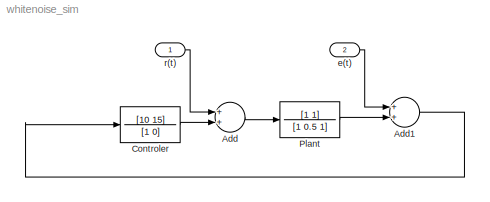
MODEL whitenoise_sim
KIND model
BLOCK [Sum] Add
  CollapseMode = All dimensions
  InputSameDT = off
  OutDataTypeMode = Inherit via internal rule
  OutScaling = 2^-10
  Ports = [2, 1]
  SaturateOnIntegerOverflow = off
BLOCK [Sum] Add1
  CollapseMode = All dimensions
  InputSameDT = off
  OutDataTypeMode = Inherit via internal rule
  OutScaling = 2^-10
  Ports = [2, 1]
  SaturateOnIntegerOverflow = off
BLOCK [TransferFcn] Controler
  Denominator = [1 0]
  Numerator = [10 15]
BLOCK [TransferFcn] Plant
  Denominator = [1  0.5 1]
  Numerator = [1 1]
BLOCK [Inport] e(t)
  IconDisplay = Port number
  Port = 2
BLOCK [Inport] r(t)
  IconDisplay = Port number
LINE Add1:1 -> Controler:1
LINE Add:1 -> Plant:1
LINE Controler:1 -> Add:2
LINE Plant:1 -> Add1:2
LINE e(t):1 -> Add1:1
LINE r(t):1 -> Add:1
